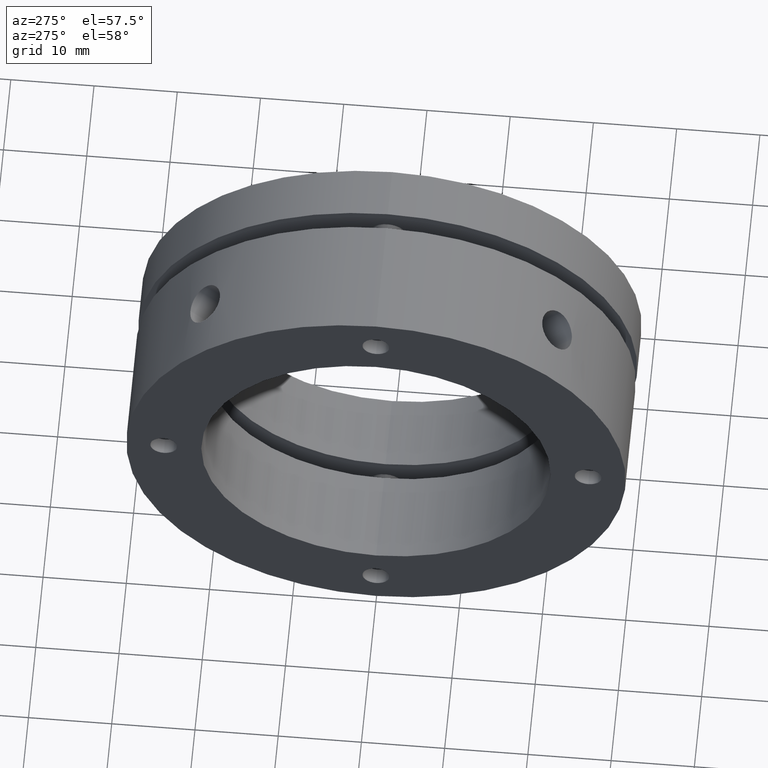
[diagram: clean part render]
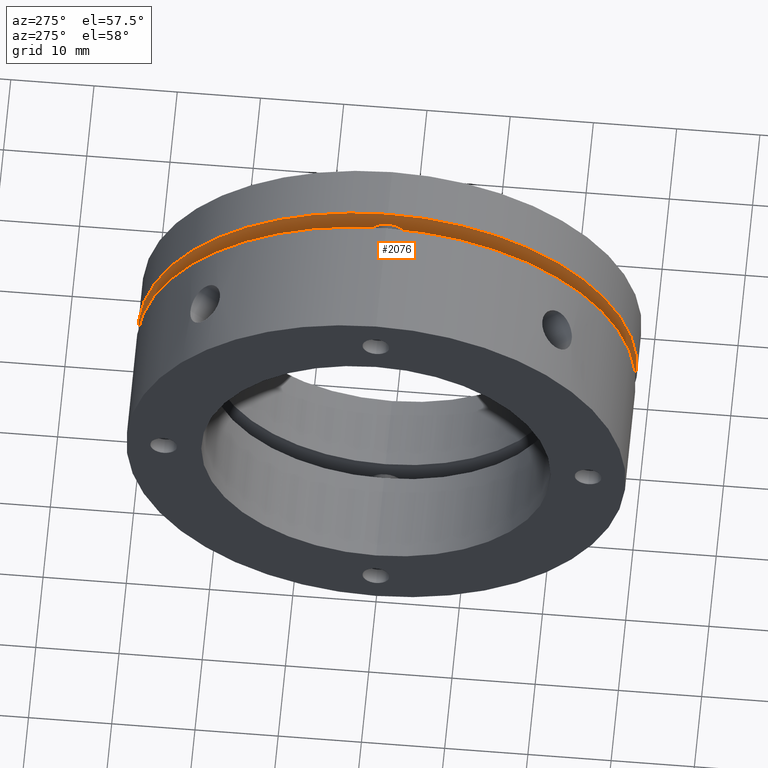
[diagram: same view with one face highlighted and labeled with its STEP entity id]
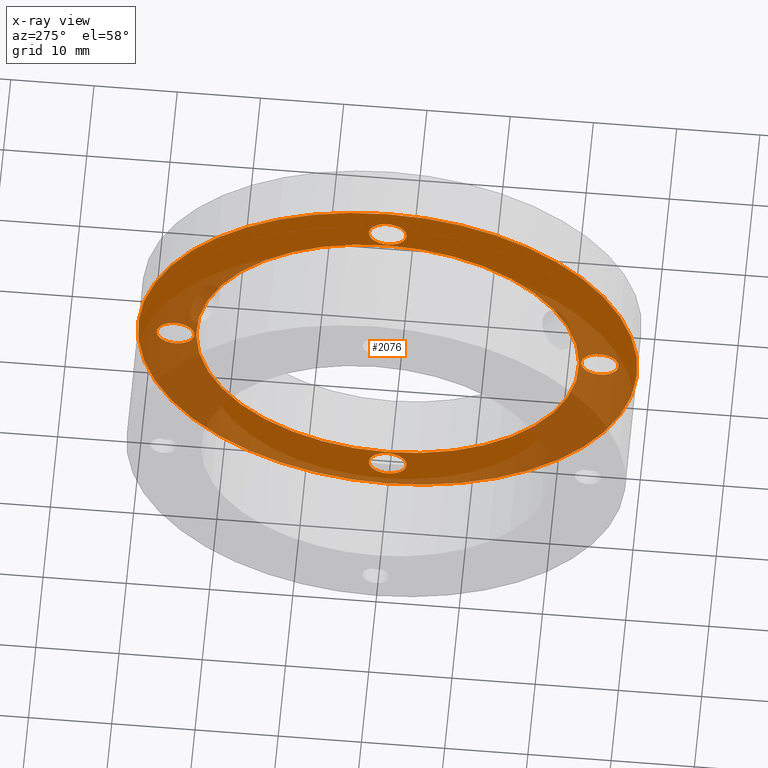
[diagram: x-ray of the same camera — body ghosted, the highlighted face saturated]
A machine part, auxiliary view. The second image highlights one B-rep face of the part: STEP entity #2076.
The next image is the same camera in x-ray: the body ghosted, the highlighted face saturated — about 42% of this face is hidden behind the body in this view.
In plain terms, the highlighted planar face has unit normal (1, 0, 0).
Its self-contained STEP definition (entity closure, byte-faithful):
#11 = CIRCLE ( 'NONE', #3414, 23.00000000000000700 ) ;
#462 = CARTESIAN_POINT ( 'NONE',  ( 15.99999999999999600, 0.0000000000000000000, 0.0000000000000000000 ) ) ;
#463 = DIRECTION ( 'NONE',  ( -1.000000000000000000, 0.0000000000000000000, 0.0000000000000000000 ) ) ;
#464 = DIRECTION ( 'NONE',  ( 0.0000000000000000000, 0.0000000000000000000, 1.000000000000000000 ) ) ;
#667 = CARTESIAN_POINT ( 'NONE',  ( 15.99999999999999600, 0.0000000000000000000, 0.0000000000000000000 ) ) ;
#668 = DIRECTION ( 'NONE',  ( 1.000000000000000000, 0.0000000000000000000, 0.0000000000000000000 ) ) ;
#669 = DIRECTION ( 'NONE',  ( 0.0000000000000000000, 0.0000000000000000000, -1.000000000000000000 ) ) ;
#687 = CARTESIAN_POINT ( 'NONE',  ( 15.99999999999999600, 25.50000000000001100, -4.684274000000000000E-015 ) ) ;
#688 = DIRECTION ( 'NONE',  ( -1.000000000000000000, -0.0000000000000000000, -0.0000000000000000000 ) ) ;
#689 = DIRECTION ( 'NONE',  ( 0.0000000000000000000, 0.0000000000000000000, -1.000000000000000000 ) ) ;
#692 = CARTESIAN_POINT ( 'NONE',  ( 15.99999999999999600, -3.122849000000000000E-015, -25.50000000000001100 ) ) ;
#693 = DIRECTION ( 'NONE',  ( -1.000000000000000000, -0.0000000000000000000, -0.0000000000000000000 ) ) ;
#694 = DIRECTION ( 'NONE',  ( 0.0000000000000000000, 0.0000000000000000000, -1.000000000000000000 ) ) ;
#704 = CARTESIAN_POINT ( 'NONE',  ( 15.99999999999999600, -25.50000000000001100, 1.561424999999999900E-015 ) ) ;
#705 = DIRECTION ( 'NONE',  ( -1.000000000000000000, -0.0000000000000000000, -0.0000000000000000000 ) ) ;
#706 = DIRECTION ( 'NONE',  ( 0.0000000000000000000, 0.0000000000000000000, -1.000000000000000000 ) ) ;
#764 = CARTESIAN_POINT ( 'NONE',  ( 15.99999999999999600, 0.0000000000000000000, 25.50000000000001100 ) ) ;
#765 = DIRECTION ( 'NONE',  ( -1.000000000000000000, -0.0000000000000000000, -0.0000000000000000000 ) ) ;
#766 = DIRECTION ( 'NONE',  ( 0.0000000000000000000, 0.0000000000000000000, -1.000000000000000000 ) ) ;
#930 = EDGE_CURVE ( 'NONE', #1219, #1222, #1974, .T. ) ;
#937 = EDGE_CURVE ( 'NONE', #1223, #1226, #1963, .T. ) ;
#942 = EDGE_CURVE ( 'NONE', #1227, #1231, #1957, .T. ) ;
#943 = EDGE_CURVE ( 'NONE', #1232, #1235, #1951, .T. ) ;
#945 = EDGE_CURVE ( 'NONE', #1238, #1239, #1954, .T. ) ;
#1051 = EDGE_LOOP ( 'NONE', ( #1521, #1489 ) ) ;
#1053 = EDGE_LOOP ( 'NONE', ( #1422, #1418 ) ) ;
#1054 = EDGE_LOOP ( 'NONE', ( #1516, #1433 ) ) ;
#1055 = EDGE_LOOP ( 'NONE', ( #1490, #1410 ) ) ;
#1056 = EDGE_LOOP ( 'NONE', ( #1413, #1417 ) ) ;
#1070 = EDGE_LOOP ( 'NONE', ( #1532, #1535 ) ) ;
#1219 = VERTEX_POINT ( 'NONE', #2629 ) ;
#1222 = VERTEX_POINT ( 'NONE', #2635 ) ;
#1223 = VERTEX_POINT ( 'NONE', #2636 ) ;
#1226 = VERTEX_POINT ( 'NONE', #2641 ) ;
#1227 = VERTEX_POINT ( 'NONE', #2643 ) ;
#1231 = VERTEX_POINT ( 'NONE', #2650 ) ;
#1232 = VERTEX_POINT ( 'NONE', #2651 ) ;
#1235 = VERTEX_POINT ( 'NONE', #2657 ) ;
#1238 = VERTEX_POINT ( 'NONE', #2662 ) ;
#1239 = VERTEX_POINT ( 'NONE', #2664 ) ;
#1261 = VERTEX_POINT ( 'NONE', #2702 ) ;
#1265 = VERTEX_POINT ( 'NONE', #2709 ) ;
#1287 = AXIS2_PLACEMENT_3D ( 'NONE', #3407, #3402, #3409 ) ;
#1312 = AXIS2_PLACEMENT_3D ( 'NONE', #462, #463, #464 ) ;
#1410 = ORIENTED_EDGE ( 'NONE', *, *, #930, .F. ) ;
#1413 = ORIENTED_EDGE ( 'NONE', *, *, #3483, .F. ) ;
#1417 = ORIENTED_EDGE ( 'NONE', *, *, #937, .F. ) ;
#1418 = ORIENTED_EDGE ( 'NONE', *, *, #942, .F. ) ;
#1422 = ORIENTED_EDGE ( 'NONE', *, *, #3485, .F. ) ;
#1433 = ORIENTED_EDGE ( 'NONE', *, *, #2523, .F. ) ;
#1489 = ORIENTED_EDGE ( 'NONE', *, *, #943, .F. ) ;
#1490 = ORIENTED_EDGE ( 'NONE', *, *, #3475, .F. ) ;
#1516 = ORIENTED_EDGE ( 'NONE', *, *, #1923, .F. ) ;
#1521 = ORIENTED_EDGE ( 'NONE', *, *, #3490, .F. ) ;
#1532 = ORIENTED_EDGE ( 'NONE', *, *, #3514, .F. ) ;
#1535 = ORIENTED_EDGE ( 'NONE', *, *, #945, .F. ) ;
#1923 = EDGE_CURVE ( 'NONE', #1261, #1265, #11, .T. ) ;
#1951 = CIRCLE ( 'NONE', #3455, 2.250000000000000400 ) ;
#1954 = CIRCLE ( 'NONE', #3453, 2.249999999999998700 ) ;
#1957 = CIRCLE ( 'NONE', #3456, 2.249999999999998700 ) ;
#1963 = CIRCLE ( 'NONE', #3459, 2.250000000000000400 ) ;
#1974 = CIRCLE ( 'NONE', #3464, 30.00000000000000000 ) ;
#2076 = ADVANCED_FACE ( 'NONE', ( #2213, #2217, #2214, #2216, #2215, #2218 ), #3406, .F. ) ;
#2213 = FACE_BOUND ( 'NONE', #1054, .T. ) ;
#2214 = FACE_BOUND ( 'NONE', #1051, .T. ) ;
#2215 = FACE_BOUND ( 'NONE', #1056, .T. ) ;
#2216 = FACE_BOUND ( 'NONE', #1053, .T. ) ;
#2217 = FACE_BOUND ( 'NONE', #1070, .T. ) ;
#2218 = FACE_OUTER_BOUND ( 'NONE', #1055, .T. ) ;
#2294 = CIRCLE ( 'NONE', #1312, 23.00000000000000700 ) ;
#2351 = CIRCLE ( 'NONE', #2689, 30.00000000000000000 ) ;
#2362 = CIRCLE ( 'NONE', #2701, 2.249999999999998700 ) ;
#2364 = CIRCLE ( 'NONE', #2698, 2.250000000000000400 ) ;
#2370 = CIRCLE ( 'NONE', #2705, 2.250000000000000400 ) ;
#2410 = CIRCLE ( 'NONE', #2733, 2.249999999999998700 ) ;
#2452 = CARTESIAN_POINT ( 'NONE',  ( 15.99999999999999600, 0.0000000000000000000, 0.0000000000000000000 ) ) ;
#2453 = DIRECTION ( 'NONE',  ( 1.000000000000000000, 0.0000000000000000000, 0.0000000000000000000 ) ) ;
#2454 = DIRECTION ( 'NONE',  ( 0.0000000000000000000, 0.0000000000000000000, -1.000000000000000000 ) ) ;
#2473 = CARTESIAN_POINT ( 'NONE',  ( 15.99999999999999600, 25.50000000000001100, -4.684274000000000000E-015 ) ) ;
#2474 = DIRECTION ( 'NONE',  ( -1.000000000000000000, -0.0000000000000000000, -0.0000000000000000000 ) ) ;
#2475 = DIRECTION ( 'NONE',  ( 0.0000000000000000000, 0.0000000000000000000, -1.000000000000000000 ) ) ;
#2486 = CARTESIAN_POINT ( 'NONE',  ( 15.99999999999999600, -3.122849000000000000E-015, -25.50000000000001100 ) ) ;
#2487 = DIRECTION ( 'NONE',  ( -1.000000000000000000, -0.0000000000000000000, -0.0000000000000000000 ) ) ;
#2488 = DIRECTION ( 'NONE',  ( 0.0000000000000000000, 0.0000000000000000000, -1.000000000000000000 ) ) ;
#2489 = CARTESIAN_POINT ( 'NONE',  ( 15.99999999999999600, -25.50000000000001100, 1.561424999999999900E-015 ) ) ;
#2490 = DIRECTION ( 'NONE',  ( -1.000000000000000000, -0.0000000000000000000, -0.0000000000000000000 ) ) ;
#2491 = DIRECTION ( 'NONE',  ( 0.0000000000000000000, 0.0000000000000000000, -1.000000000000000000 ) ) ;
#2496 = CARTESIAN_POINT ( 'NONE',  ( 15.99999999999999600, 0.0000000000000000000, 25.50000000000001100 ) ) ;
#2497 = DIRECTION ( 'NONE',  ( -1.000000000000000000, -0.0000000000000000000, -0.0000000000000000000 ) ) ;
#2498 = DIRECTION ( 'NONE',  ( 0.0000000000000000000, 0.0000000000000000000, -1.000000000000000000 ) ) ;
#2523 = EDGE_CURVE ( 'NONE', #1265, #1261, #2294, .T. ) ;
#2629 = CARTESIAN_POINT ( 'NONE',  ( 15.99999999999999600, 3.673940397442059200E-015, 30.00000000000000000 ) ) ;
#2635 = CARTESIAN_POINT ( 'NONE',  ( 15.99999999999999600, 0.0000000000000000000, -30.00000000000000000 ) ) ;
#2636 = CARTESIAN_POINT ( 'NONE',  ( 15.99999999999999600, 25.50000000000001100, 2.249999999999995600 ) ) ;
#2641 = CARTESIAN_POINT ( 'NONE',  ( 15.99999999999999600, 25.50000000000001100, -2.250000000000004900 ) ) ;
#2643 = CARTESIAN_POINT ( 'NONE',  ( 15.99999999999999600, -2.847303470191845600E-015, -23.25000000000001400 ) ) ;
#2650 = CARTESIAN_POINT ( 'NONE',  ( 15.99999999999999600, -3.122849000000000000E-015, -27.75000000000001100 ) ) ;
#2651 = CARTESIAN_POINT ( 'NONE',  ( 15.99999999999999600, -25.50000000000001100, 2.250000000000001800 ) ) ;
#2657 = CARTESIAN_POINT ( 'NONE',  ( 15.99999999999999600, -25.50000000000001100, -2.249999999999998700 ) ) ;
#2662 = CARTESIAN_POINT ( 'NONE',  ( 15.99999999999999600, 2.755455298081546700E-016, 27.75000000000001100 ) ) ;
#2664 = CARTESIAN_POINT ( 'NONE',  ( 15.99999999999999600, 0.0000000000000000000, 23.25000000000001400 ) ) ;
#2689 = AXIS2_PLACEMENT_3D ( 'NONE', #667, #668, #669 ) ;
#2698 = AXIS2_PLACEMENT_3D ( 'NONE', #687, #688, #689 ) ;
#2701 = AXIS2_PLACEMENT_3D ( 'NONE', #692, #693, #694 ) ;
#2702 = CARTESIAN_POINT ( 'NONE',  ( 15.99999999999999600, 0.0000000000000000000, 23.00000000000000700 ) ) ;
#2705 = AXIS2_PLACEMENT_3D ( 'NONE', #704, #705, #706 ) ;
#2709 = CARTESIAN_POINT ( 'NONE',  ( 15.99999999999999600, 2.816687638038913100E-015, -23.00000000000000700 ) ) ;
#2733 = AXIS2_PLACEMENT_3D ( 'NONE', #764, #765, #766 ) ;
#3140 = CARTESIAN_POINT ( 'NONE',  ( 15.99999999999999600, 0.0000000000000000000, 0.0000000000000000000 ) ) ;
#3141 = DIRECTION ( 'NONE',  ( -1.000000000000000000, 0.0000000000000000000, 0.0000000000000000000 ) ) ;
#3142 = DIRECTION ( 'NONE',  ( 0.0000000000000000000, 0.0000000000000000000, 1.000000000000000000 ) ) ;
#3402 = DIRECTION ( 'NONE',  ( 1.000000000000000000, -0.0000000000000000000, 0.0000000000000000000 ) ) ;
#3406 = PLANE ( 'NONE',  #1287 ) ;
#3407 = CARTESIAN_POINT ( 'NONE',  ( 15.99999999999999600, 26.50000000000000400, 0.0000000000000000000 ) ) ;
#3409 = DIRECTION ( 'NONE',  ( 0.0000000000000000000, 0.0000000000000000000, -1.000000000000000000 ) ) ;
#3414 = AXIS2_PLACEMENT_3D ( 'NONE', #3140, #3141, #3142 ) ;
#3453 = AXIS2_PLACEMENT_3D ( 'NONE', #2496, #2497, #2498 ) ;
#3455 = AXIS2_PLACEMENT_3D ( 'NONE', #2489, #2490, #2491 ) ;
#3456 = AXIS2_PLACEMENT_3D ( 'NONE', #2486, #2487, #2488 ) ;
#3459 = AXIS2_PLACEMENT_3D ( 'NONE', #2473, #2474, #2475 ) ;
#3464 = AXIS2_PLACEMENT_3D ( 'NONE', #2452, #2453, #2454 ) ;
#3475 = EDGE_CURVE ( 'NONE', #1222, #1219, #2351, .T. ) ;
#3483 = EDGE_CURVE ( 'NONE', #1226, #1223, #2364, .T. ) ;
#3485 = EDGE_CURVE ( 'NONE', #1231, #1227, #2362, .T. ) ;
#3490 = EDGE_CURVE ( 'NONE', #1235, #1232, #2370, .T. ) ;
#3514 = EDGE_CURVE ( 'NONE', #1239, #1238, #2410, .T. ) ;